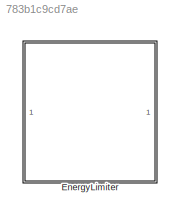
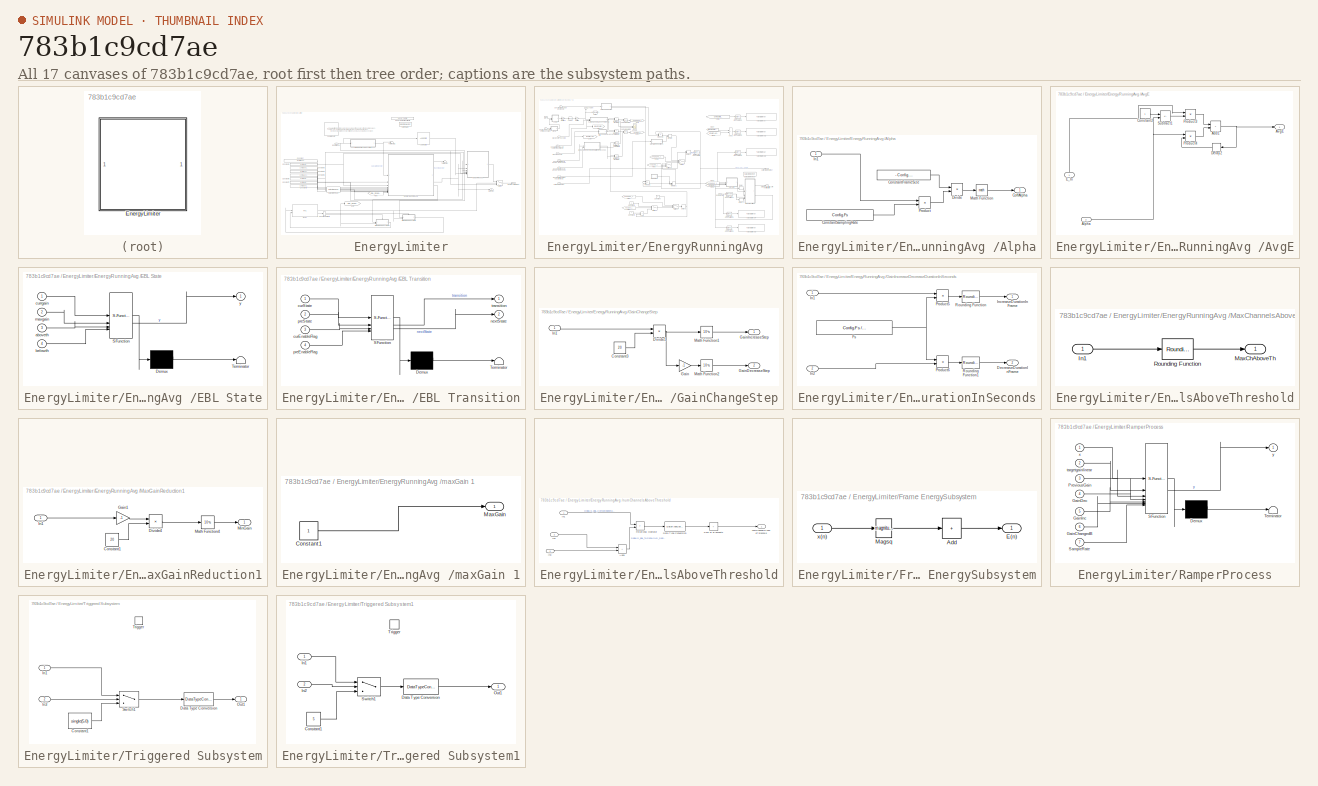
[diagram: thumbnail index - all 17 canvases of the model, root first then tree order]
MODEL slx_783b1c9cd7ae
KIND library
CONFIG AbsTol = auto
CONFIG EnableMultiTasking = off
CONFIG FixedStep = auto
CONFIG MaxStep = auto
CONFIG MinStep = auto
CONFIG RelTol = 1e-3
CONFIG SampleTimeConstraint = Unconstrained
CONFIG SolverName = VariableStepAuto
CONFIG StartTime = 0.0
CONFIG StopTime = 10.0
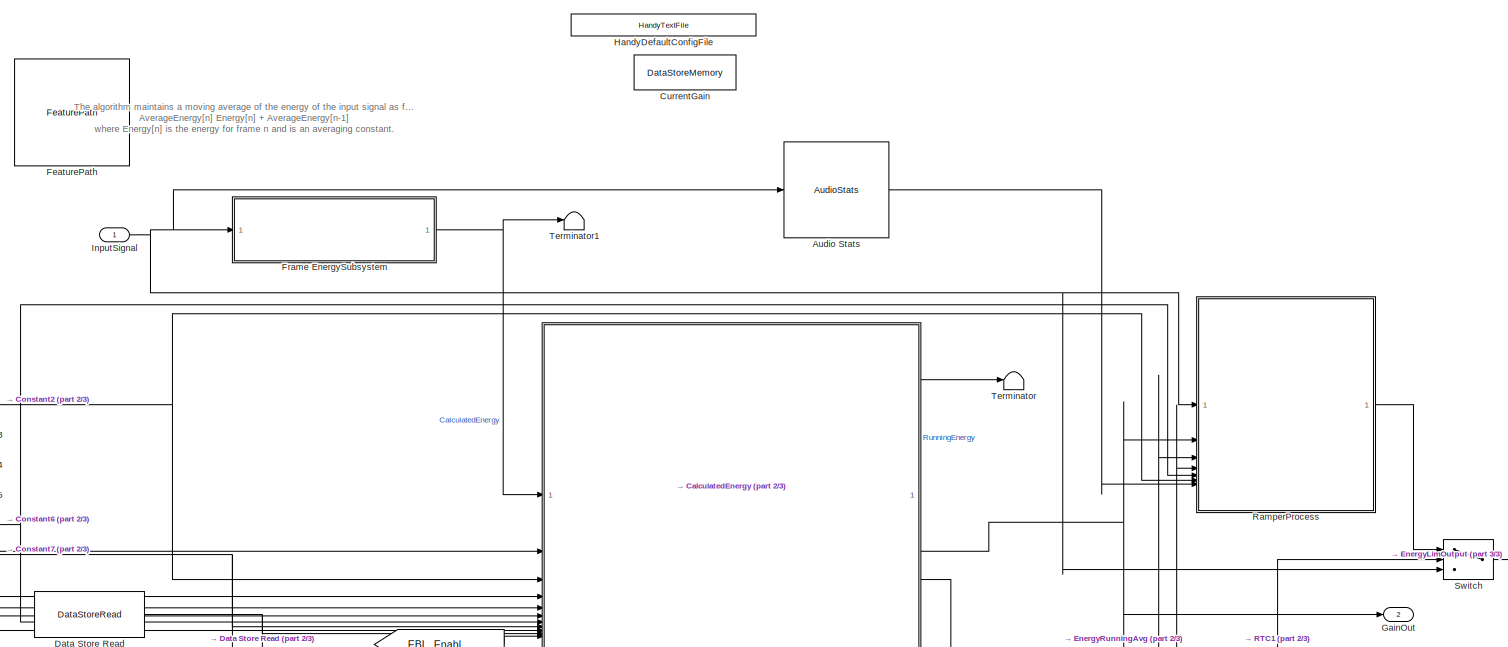
[diagram: EnergyLimiter - part 1/3, full width, middle band]
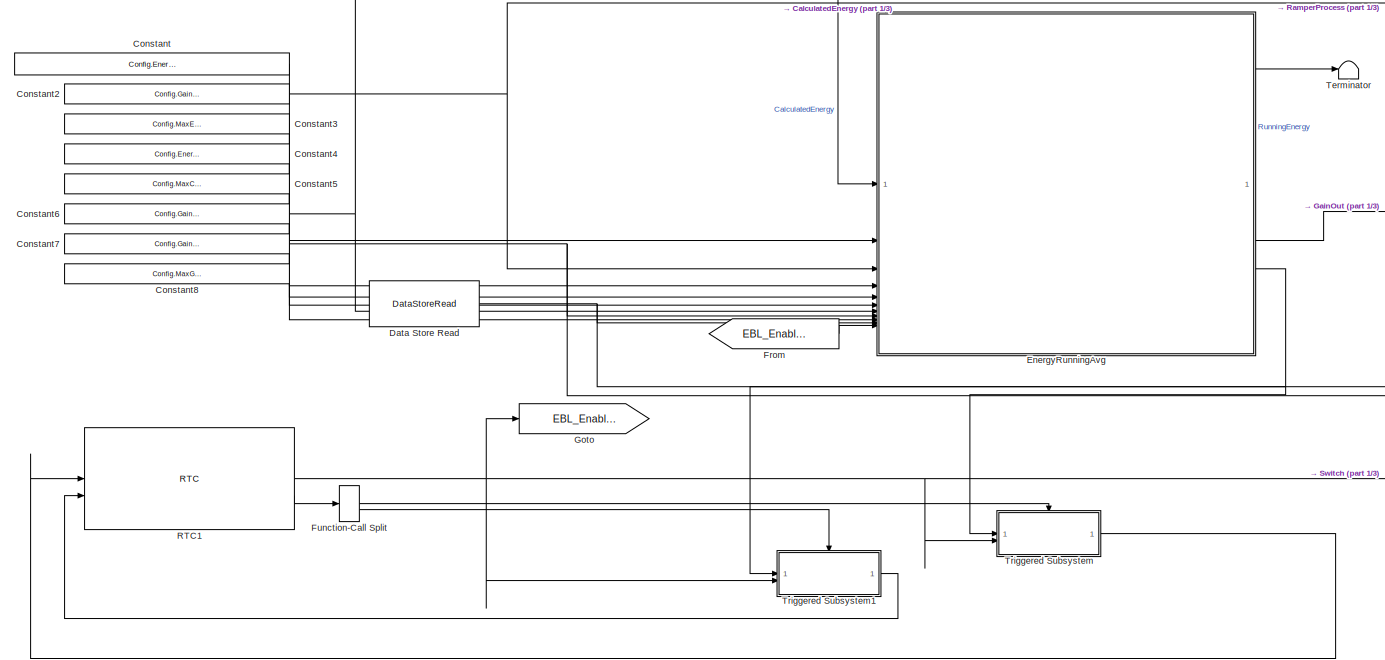
[diagram: EnergyLimiter - part 2/3, central region]
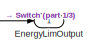
[diagram: EnergyLimiter - part 3/3, middle right region]
BLOCK [SubSystem] EnergyLimiter
BLOCK [Reference] EnergyLimiter/Audio Stats  REF=AudioStats/AudioStats
  SourceBlock = AudioStats/AudioStats
  SourceType = Talaria Audio Statistics
BLOCK [Constant] EnergyLimiter/Constant
  Value = Config.EnergyMeasurementTimeConstantInSeconds
BLOCK [Constant] EnergyLimiter/Constant2
  Value = Config.GainChangeStepInDb
BLOCK [Constant] EnergyLimiter/Constant3
  Value = Config.MaxEnergyLevelInDb
BLOCK [Constant] EnergyLimiter/Constant4
  Value = Config.EnergyAdjustmentFactorInDb
BLOCK [Constant] EnergyLimiter/Constant5
  Value = Config.MaxChannels
BLOCK [Constant] EnergyLimiter/Constant6
  Value = Config.GainIncreaseDurationInSeconds
BLOCK [Constant] EnergyLimiter/Constant7
  Value = Config.GainDecreaseDurationInSeconds
BLOCK [Constant] EnergyLimiter/Constant8
  Value = Config.MaxGainReductionInDb
BLOCK [DataStoreMemory] EnergyLimiter/CurrentGain
  DataStoreName = CurrentGainValue
  InitialValue = Config.CurrentGainVal
  OutDataTypeStr = single
  ShowAdditionalParam = off
BLOCK [DataStoreRead] EnergyLimiter/Data Store Read
  DataStoreName = CurrentGainValue
  IndexOptions = Index vector (dialog)
  Indices = 1
  OutputSizes = 1
BLOCK [Outport] EnergyLimiter/EnergyLimOutput
  VectorParamsAs1DForOutWhenUnconnected = off
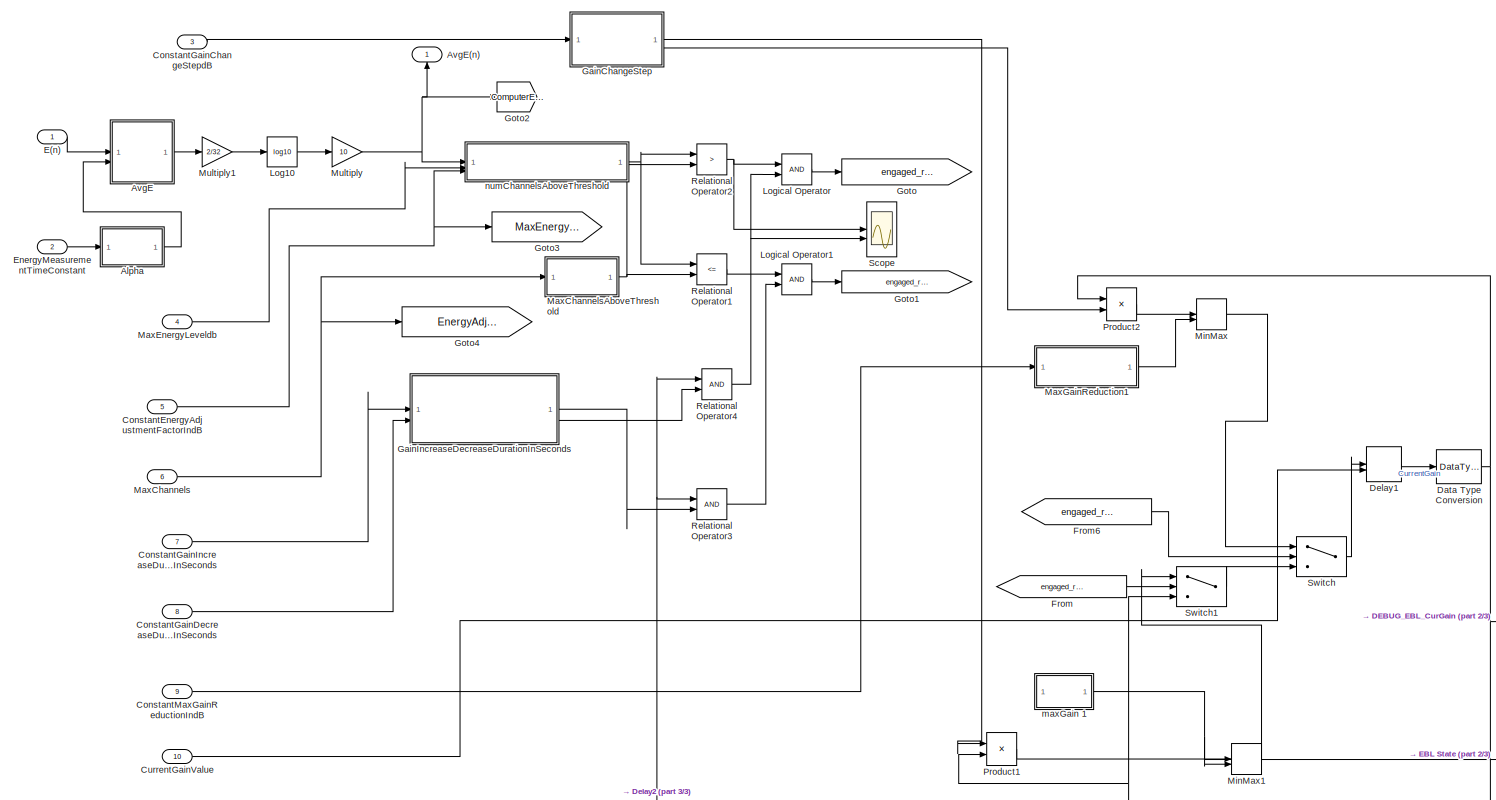
[diagram: EnergyLimiter/EnergyRunningAvg  - part 1/3, central region]
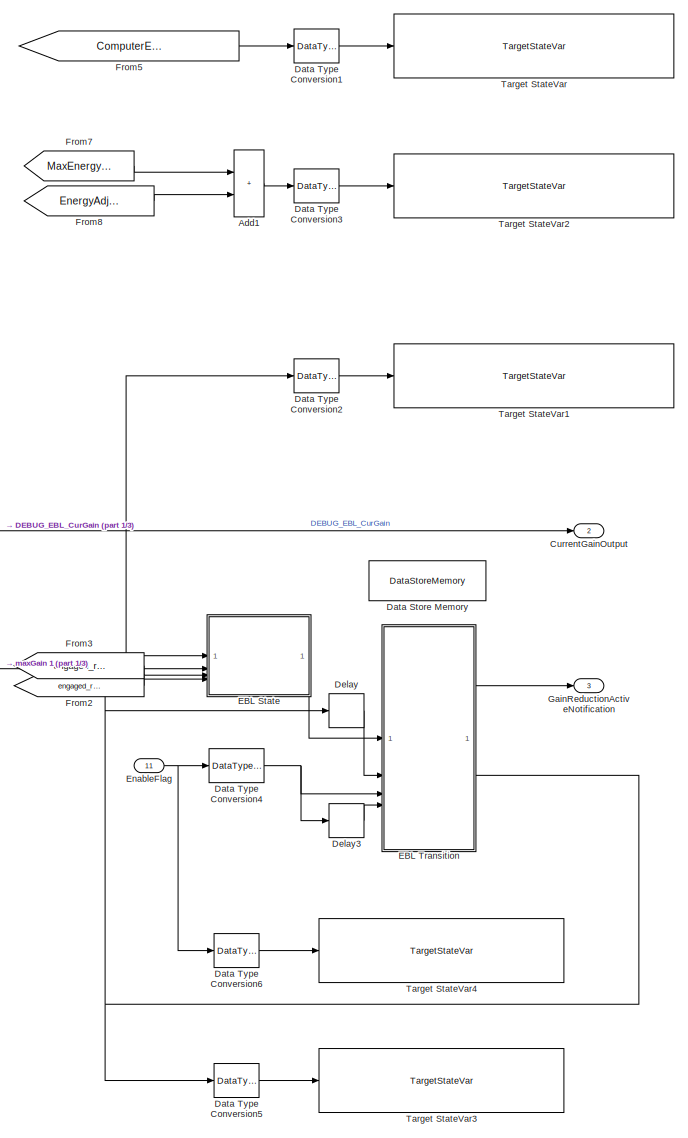
[diagram: EnergyLimiter/EnergyRunningAvg  - part 2/3, right side, full height]
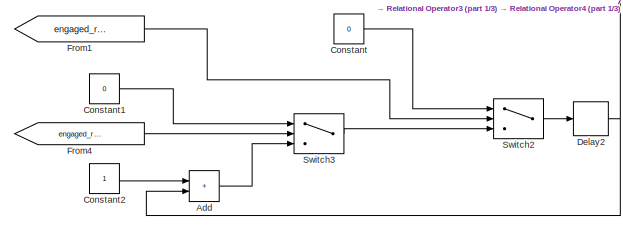
[diagram: EnergyLimiter/EnergyRunningAvg  - part 3/3, bottom center region]
BLOCK [SubSystem] EnergyLimiter/EnergyRunningAvg 
BLOCK [Sum] EnergyLimiter/EnergyRunningAvg /Add
  IconShape = rectangular
BLOCK [Sum] EnergyLimiter/EnergyRunningAvg /Add1
  IconShape = rectangular
BLOCK [SubSystem] EnergyLimiter/EnergyRunningAvg /Alpha
BLOCK [Outport] EnergyLimiter/EnergyRunningAvg /Alpha/CoffAlpha
  VectorParamsAs1DForOutWhenUnconnected = off
BLOCK [Constant] EnergyLimiter/EnergyRunningAvg /Alpha/ConstantFrameSize
  OutDataTypeStr = single
  Value = - Config.FrameSize
BLOCK [Constant] EnergyLimiter/EnergyRunningAvg /Alpha/ConstantSamplingRate
  OutDataTypeStr = single
  Value = Config.Fs
BLOCK [Product] EnergyLimiter/EnergyRunningAvg /Alpha/Divide
  Inputs = */
BLOCK [Inport] EnergyLimiter/EnergyRunningAvg /Alpha/In1
BLOCK [Math] EnergyLimiter/EnergyRunningAvg /Alpha/Math Function
  SignedPower = on
BLOCK [Product] EnergyLimiter/EnergyRunningAvg /Alpha/Product
BLOCK [SubSystem] EnergyLimiter/EnergyRunningAvg /AvgE
BLOCK [Outport] EnergyLimiter/EnergyRunningAvg /AvgE(n)
  NameLocation = right
  VectorParamsAs1DForOutWhenUnconnected = off
BLOCK [Sum] EnergyLimiter/EnergyRunningAvg /AvgE/Add1
  IconShape = rectangular
BLOCK [Inport] EnergyLimiter/EnergyRunningAvg /AvgE/Alpha
  Port = 2
BLOCK [Outport] EnergyLimiter/EnergyRunningAvg /AvgE/AvgE
  VectorParamsAs1DForOutWhenUnconnected = off
BLOCK [Constant] EnergyLimiter/EnergyRunningAvg /AvgE/Constant2
  OutDataTypeStr = single
BLOCK [Delay] EnergyLimiter/EnergyRunningAvg /AvgE/Delay2
  DelayLength = 1
  InitialCondition = 0
  InputPortMap = u0
BLOCK [Inport] EnergyLimiter/EnergyRunningAvg /AvgE/E_In
  NameLocation = right
BLOCK [Product] EnergyLimiter/EnergyRunningAvg /AvgE/Product3
BLOCK [Product] EnergyLimiter/EnergyRunningAvg /AvgE/Product4
BLOCK [Sum] EnergyLimiter/EnergyRunningAvg /AvgE/Subtract1
  IconShape = rectangular
  Inputs = +-
BLOCK [Constant] EnergyLimiter/EnergyRunningAvg /Constant
  OutDataTypeStr = single
  Value = 0
BLOCK [Constant] EnergyLimiter/EnergyRunningAvg /Constant1
  OutDataTypeStr = single
  Value = 0
BLOCK [Constant] EnergyLimiter/EnergyRunningAvg /Constant2
  OutDataTypeStr = single
BLOCK [Inport] EnergyLimiter/EnergyRunningAvg /ConstantEnergyAdjustmentFactorIndB
  Port = 5
BLOCK [Inport] EnergyLimiter/EnergyRunningAvg /ConstantGainChangeStepdB
  Port = 3
BLOCK [Inport] EnergyLimiter/EnergyRunningAvg /ConstantGainDecreaseDurationInSeconds
  Port = 8
BLOCK [Inport] EnergyLimiter/EnergyRunningAvg /ConstantGainIncreaseDurationInSeconds
  Port = 7
BLOCK [Inport] EnergyLimiter/EnergyRunningAvg /ConstantMaxGainReductionIndB
  Port = 9
BLOCK [Outport] EnergyLimiter/EnergyRunningAvg /CurrentGainOutput
  Port = 2
  VectorParamsAs1DForOutWhenUnconnected = off
BLOCK [Inport] EnergyLimiter/EnergyRunningAvg /CurrentGainValue
  Port = 10
BLOCK [DataStoreMemory] EnergyLimiter/EnergyRunningAvg /Data Store Memory
  DataStoreName = EBL_EnableCounter
  OutDataTypeStr = int16
  ReadBeforeWriteMsg = warning
  ShowAdditionalParam = off
  WriteAfterReadMsg = warning
  WriteAfterWriteMsg = warning
BLOCK [DataTypeConversion] EnergyLimiter/EnergyRunningAvg /Data Type Conversion
  OutDataTypeStr = single
  RndMeth = Floor
  SaturateOnIntegerOverflow = off
BLOCK [DataTypeConversion] EnergyLimiter/EnergyRunningAvg /Data Type Conversion1
  OutDataTypeStr = single
  RndMeth = Floor
  SaturateOnIntegerOverflow = off
BLOCK [DataTypeConversion] EnergyLimiter/EnergyRunningAvg /Data Type Conversion2
  OutDataTypeStr = single
  RndMeth = Floor
  SaturateOnIntegerOverflow = off
BLOCK [DataTypeConversion] EnergyLimiter/EnergyRunningAvg /Data Type Conversion3
  OutDataTypeStr = single
  RndMeth = Floor
  SaturateOnIntegerOverflow = off
BLOCK [DataTypeConversion] EnergyLimiter/EnergyRunningAvg /Data Type Conversion4
  OutDataTypeStr = single
  RndMeth = Floor
  SaturateOnIntegerOverflow = off
BLOCK [DataTypeConversion] EnergyLimiter/EnergyRunningAvg /Data Type Conversion5
  OutDataTypeStr = int16
  RndMeth = Floor
  SaturateOnIntegerOverflow = off
BLOCK [DataTypeConversion] EnergyLimiter/EnergyRunningAvg /Data Type Conversion6
  OutDataTypeStr = int16
  RndMeth = Floor
  SaturateOnIntegerOverflow = off
BLOCK [Delay] EnergyLimiter/EnergyRunningAvg /Delay
  DelayLength = 1
  InputPortMap = u0
BLOCK [Delay] EnergyLimiter/EnergyRunningAvg /Delay1
  DelayLength = 1
  InitialConditionSource = Input port
  InputPortMap = u0,p4
BLOCK [Delay] EnergyLimiter/EnergyRunningAvg /Delay2
  DelayLength = 1
  InitialCondition = 1
  InputPortMap = u0
BLOCK [Delay] EnergyLimiter/EnergyRunningAvg /Delay3
  DelayLength = 1
  InputPortMap = u0
BLOCK [Inport] EnergyLimiter/EnergyRunningAvg /E(n)
BLOCK [SubSystem] EnergyLimiter/EnergyRunningAvg /EBL State
  ErrorFcn = Stateflow.Translate.translate
  PermitHierarchicalResolution = ExplicitOnly
  SFBlockType = MATLAB Function
  TreatAsAtomicUnit = on
BLOCK [Demux] EnergyLimiter/EnergyRunningAvg /EBL State/ Demux 
  Outputs = 1
BLOCK [S-Function] EnergyLimiter/EnergyRunningAvg /EBL State/ SFunction 
  EnableBusSupport = off
  FunctionName = sf_sfun
  PortCounts = [4 2]
  SFcnIsStateOwnerBlock = off
  SFunctionDeploymentMode = off
  Tag = Stateflow S-Function 5
BLOCK [Terminator] EnergyLimiter/EnergyRunningAvg /EBL State/ Terminator 
BLOCK [Inport] EnergyLimiter/EnergyRunningAvg /EBL State/aboveth
  Port = 3
BLOCK [Inport] EnergyLimiter/EnergyRunningAvg /EBL State/belowth
  Port = 4
BLOCK [Inport] EnergyLimiter/EnergyRunningAvg /EBL State/currgain
BLOCK [Inport] EnergyLimiter/EnergyRunningAvg /EBL State/maxgain
  Port = 2
BLOCK [Outport] EnergyLimiter/EnergyRunningAvg /EBL State/y
BLOCK [SubSystem] EnergyLimiter/EnergyRunningAvg /EBL Transition
  ErrorFcn = Stateflow.Translate.translate
  PermitHierarchicalResolution = ExplicitOnly
  SFBlockType = MATLAB Function
  TreatAsAtomicUnit = on
BLOCK [Demux] EnergyLimiter/EnergyRunningAvg /EBL Transition/ Demux 
  Outputs = 1
BLOCK [S-Function] EnergyLimiter/EnergyRunningAvg /EBL Transition/ SFunction 
  EnableBusSupport = off
  FunctionName = sf_sfun
  PortCounts = [4 3]
  SFcnIsStateOwnerBlock = off
  SFunctionDeploymentMode = off
  Tag = Stateflow S-Function 2
BLOCK [Terminator] EnergyLimiter/EnergyRunningAvg /EBL Transition/ Terminator 
BLOCK [Inport] EnergyLimiter/EnergyRunningAvg /EBL Transition/curEnableFlag
  Port = 3
BLOCK [Inport] EnergyLimiter/EnergyRunningAvg /EBL Transition/curState
BLOCK [Outport] EnergyLimiter/EnergyRunningAvg /EBL Transition/nextState
  Port = 2
BLOCK [Inport] EnergyLimiter/EnergyRunningAvg /EBL Transition/preEnableFlag
  Port = 4
BLOCK [Inport] EnergyLimiter/EnergyRunningAvg /EBL Transition/preState
  Port = 2
BLOCK [Outport] EnergyLimiter/EnergyRunningAvg /EBL Transition/transition
BLOCK [Inport] EnergyLimiter/EnergyRunningAvg /EnableFlag
  Port = 11
BLOCK [Inport] EnergyLimiter/EnergyRunningAvg /EnergyMeasurementTimeConstant
  Port = 2
BLOCK [From] EnergyLimiter/EnergyRunningAvg /From
  GotoTag = engaged_recovery
BLOCK [From] EnergyLimiter/EnergyRunningAvg /From1
  GotoTag = engaged_reduction
BLOCK [From] EnergyLimiter/EnergyRunningAvg /From2
  GotoTag = engaged_recovery
BLOCK [From] EnergyLimiter/EnergyRunningAvg /From3
  GotoTag = engaged_reduction
BLOCK [From] EnergyLimiter/EnergyRunningAvg /From4
  GotoTag = engaged_recovery
BLOCK [From] EnergyLimiter/EnergyRunningAvg /From5
  GotoTag = ComputerEnergyPerChannel
BLOCK [From] EnergyLimiter/EnergyRunningAvg /From6
  GotoTag = engaged_reduction
BLOCK [From] EnergyLimiter/EnergyRunningAvg /From7
  GotoTag = MaxEnergydBSPL
BLOCK [From] EnergyLimiter/EnergyRunningAvg /From8
  GotoTag = EnergyAdjustmentdBSPL
BLOCK [SubSystem] EnergyLimiter/EnergyRunningAvg /GainChangeStep
BLOCK [Constant] EnergyLimiter/EnergyRunningAvg /GainChangeStep/Constant3
  OutDataTypeStr = single
  Value = 20
BLOCK [Product] EnergyLimiter/EnergyRunningAvg /GainChangeStep/Divide1
  Inputs = */
BLOCK [Gain] EnergyLimiter/EnergyRunningAvg /GainChangeStep/Gain
  Gain = -1
BLOCK [Outport] EnergyLimiter/EnergyRunningAvg /GainChangeStep/GainDecreaseStep
  Port = 2
  VectorParamsAs1DForOutWhenUnconnected = off
BLOCK [Outport] EnergyLimiter/EnergyRunningAvg /GainChangeStep/GainIncreaseStep
  VectorParamsAs1DForOutWhenUnconnected = off
BLOCK [Inport] EnergyLimiter/EnergyRunningAvg /GainChangeStep/In1
BLOCK [Math] EnergyLimiter/EnergyRunningAvg /GainChangeStep/Math Function1
  Operator = 10^u
  SignedPower = on
BLOCK [Math] EnergyLimiter/EnergyRunningAvg /GainChangeStep/Math Function2
  Operator = 10^u
  SignedPower = on
BLOCK [SubSystem] EnergyLimiter/EnergyRunningAvg /GainIncreaseDecreaseDurationInSeconds
BLOCK [Outport] EnergyLimiter/EnergyRunningAvg /GainIncreaseDecreaseDurationInSeconds/DecreaseDurationInFrame
  Port = 2
  VectorParamsAs1DForOutWhenUnconnected = off
BLOCK [Constant] EnergyLimiter/EnergyRunningAvg /GainIncreaseDecreaseDurationInSeconds/Fs
  OutDataTypeStr = single
  Value = Config.Fs / Config.FrameSize
BLOCK [Inport] EnergyLimiter/EnergyRunningAvg /GainIncreaseDecreaseDurationInSeconds/In1
BLOCK [Inport] EnergyLimiter/EnergyRunningAvg /GainIncreaseDecreaseDurationInSeconds/In2
  Port = 2
BLOCK [Outport] EnergyLimiter/EnergyRunningAvg /GainIncreaseDecreaseDurationInSeconds/IncreaseDurationInFrame
  VectorParamsAs1DForOutWhenUnconnected = off
BLOCK [Product] EnergyLimiter/EnergyRunningAvg /GainIncreaseDecreaseDurationInSeconds/Product5
BLOCK [Product] EnergyLimiter/EnergyRunningAvg /GainIncreaseDecreaseDurationInSeconds/Product6
BLOCK [Rounding] EnergyLimiter/EnergyRunningAvg /GainIncreaseDecreaseDurationInSeconds/Rounding Function
  Operator = round
BLOCK [Rounding] EnergyLimiter/EnergyRunningAvg /GainIncreaseDecreaseDurationInSeconds/Rounding Function1
  Operator = round
BLOCK [Outport] EnergyLimiter/EnergyRunningAvg /GainReductionActiveNotification
  Port = 3
  VectorParamsAs1DForOutWhenUnconnected = off
BLOCK [Goto] EnergyLimiter/EnergyRunningAvg /Goto
  GotoTag = engaged_reduction
BLOCK [Goto] EnergyLimiter/EnergyRunningAvg /Goto1
  GotoTag = engaged_recovery
BLOCK [Goto] EnergyLimiter/EnergyRunningAvg /Goto2
  GotoTag = ComputerEnergyPerChannel
BLOCK [Goto] EnergyLimiter/EnergyRunningAvg /Goto3
  GotoTag = MaxEnergydBSPL
BLOCK [Goto] EnergyLimiter/EnergyRunningAvg /Goto4
  GotoTag = EnergyAdjustmentdBSPL
BLOCK [Math] EnergyLimiter/EnergyRunningAvg /Log10
  Operator = log10
BLOCK [Logic] EnergyLimiter/EnergyRunningAvg /Logical Operator
  AllPortsSameDT = off
  OutDataTypeStr = boolean
BLOCK [Logic] EnergyLimiter/EnergyRunningAvg /Logical Operator1
  AllPortsSameDT = off
  OutDataTypeStr = boolean
BLOCK [Inport] EnergyLimiter/EnergyRunningAvg /MaxChannels
  Port = 6
BLOCK [SubSystem] EnergyLimiter/EnergyRunningAvg /MaxChannelsAboveThreshold
BLOCK [Inport] EnergyLimiter/EnergyRunningAvg /MaxChannelsAboveThreshold/In1
BLOCK [Outport] EnergyLimiter/EnergyRunningAvg /MaxChannelsAboveThreshold/MaxChAboveTh
  VectorParamsAs1DForOutWhenUnconnected = off
BLOCK [Rounding] EnergyLimiter/EnergyRunningAvg /MaxChannelsAboveThreshold/Rounding Function
  Operator = round
BLOCK [Inport] EnergyLimiter/EnergyRunningAvg /MaxEnergyLeveldb
  Port = 4
BLOCK [SubSystem] EnergyLimiter/EnergyRunningAvg /MaxGainReduction1
BLOCK [Constant] EnergyLimiter/EnergyRunningAvg /MaxGainReduction1/Constant1
  OutDataTypeStr = single
  Value = 20
BLOCK [Product] EnergyLimiter/EnergyRunningAvg /MaxGainReduction1/Divide4
  Inputs = */
BLOCK [Gain] EnergyLimiter/EnergyRunningAvg /MaxGainReduction1/Gain1
  Gain = -1
BLOCK [Inport] EnergyLimiter/EnergyRunningAvg /MaxGainReduction1/In1
BLOCK [Math] EnergyLimiter/EnergyRunningAvg /MaxGainReduction1/Math Function4
  Operator = 10^u
  SignedPower = on
BLOCK [Outport] EnergyLimiter/EnergyRunningAvg /MaxGainReduction1/MinGain
  VectorParamsAs1DForOutWhenUnconnected = off
BLOCK [MinMax] EnergyLimiter/EnergyRunningAvg /MinMax
  Function = max
  Inputs = 2
  OutDataTypeStr = single
BLOCK [MinMax] EnergyLimiter/EnergyRunningAvg /MinMax1
  Inputs = 2
  OutDataTypeStr = single
BLOCK [Gain] EnergyLimiter/EnergyRunningAvg /Multiply
  Gain = 10
BLOCK [Gain] EnergyLimiter/EnergyRunningAvg /Multiply1
  Gain = 2/32
BLOCK [Product] EnergyLimiter/EnergyRunningAvg /Product1
  OutDataTypeStr = single
BLOCK [Product] EnergyLimiter/EnergyRunningAvg /Product2
BLOCK [RelationalOperator] EnergyLimiter/EnergyRunningAvg /Relational Operator1
  InputSameDT = off
  Operator = <=
  OutDataTypeStr = boolean
  RndMeth = Simplest
BLOCK [RelationalOperator] EnergyLimiter/EnergyRunningAvg /Relational Operator2
  InputSameDT = off
  Operator = >
  OutDataTypeStr = boolean
  RndMeth = Simplest
BLOCK [RelationalOperator] EnergyLimiter/EnergyRunningAvg /Relational Operator3
  InputSameDT = off
  OutDataTypeStr = boolean
  RndMeth = Simplest
BLOCK [RelationalOperator] EnergyLimiter/EnergyRunningAvg /Relational Operator4
  InputSameDT = off
  OutDataTypeStr = boolean
  RndMeth = Simplest
BLOCK [Scope] EnergyLimiter/EnergyRunningAvg /Scope
  Commented = on
  Floating = off
  NumInputPorts = 2
  ScopeSpecificationString = Simulink.scopes.TimeScopeBlockCfg('CurrentConfiguration', extmgr.ConfigurationSet(extmgr.Configuration('Core','General UI',true),extmgr.Configuration('Core','Source UI',true),extmgr.Configuration('Sources','WiredSimulink',true,'DataLoggingVariableName','ScopeData1'),extmgr.Configuration('Visuals','Time Domain',true,'SerializedDisplays',{struct('MinYLimReal','-0.125','MaxYLimReal','1.125','YLabelRe...<+2078ch>
BLOCK [Switch] EnergyLimiter/EnergyRunningAvg /Switch
  Criteria = u2 > Threshold
  InputSameDT = off
  SaturateOnIntegerOverflow = off
BLOCK [Switch] EnergyLimiter/EnergyRunningAvg /Switch1
  Criteria = u2 > Threshold
  InputSameDT = off
  SaturateOnIntegerOverflow = off
BLOCK [Switch] EnergyLimiter/EnergyRunningAvg /Switch2
  Criteria = u2 > Threshold
  InputSameDT = off
  SaturateOnIntegerOverflow = off
BLOCK [Switch] EnergyLimiter/EnergyRunningAvg /Switch3
  Criteria = u2 > Threshold
  InputSameDT = off
  SaturateOnIntegerOverflow = off
BLOCK [Reference] EnergyLimiter/EnergyRunningAvg /Target StateVar  REF=StateVar/TargetStateVar
  SourceBlock = StateVar/TargetStateVar
  SourceType = Talaria Target State Variable
BLOCK [Reference] EnergyLimiter/EnergyRunningAvg /Target StateVar1  REF=StateVar/TargetStateVar
  SourceBlock = StateVar/TargetStateVar
  SourceType = Talaria Target State Variable
BLOCK [Reference] EnergyLimiter/EnergyRunningAvg /Target StateVar2  REF=StateVar/TargetStateVar
  SourceBlock = StateVar/TargetStateVar
  SourceType = Talaria Target State Variable
BLOCK [Reference] EnergyLimiter/EnergyRunningAvg /Target StateVar3  REF=StateVar/TargetStateVar
  SourceBlock = StateVar/TargetStateVar
  SourceType = Talaria Target State Variable
BLOCK [Reference] EnergyLimiter/EnergyRunningAvg /Target StateVar4  REF=StateVar/TargetStateVar
  SourceBlock = StateVar/TargetStateVar
  SourceType = Talaria Target State Variable
BLOCK [SubSystem] EnergyLimiter/EnergyRunningAvg /maxGain 1
BLOCK [Constant] EnergyLimiter/EnergyRunningAvg /maxGain 1/Constant1
  OutDataTypeStr = single
BLOCK [Outport] EnergyLimiter/EnergyRunningAvg /maxGain 1/MaxGain
  VectorParamsAs1DForOutWhenUnconnected = off
BLOCK [SubSystem] EnergyLimiter/EnergyRunningAvg /numChannelsAboveThreshold
BLOCK [Sum] EnergyLimiter/EnergyRunningAvg /numChannelsAboveThreshold/Add1
  IconShape = rectangular
BLOCK [DataTypeConversion] EnergyLimiter/EnergyRunningAvg /numChannelsAboveThreshold/Data Type Conversion
  RndMeth = Floor
  SaturateOnIntegerOverflow = off
BLOCK [Inport] EnergyLimiter/EnergyRunningAvg /numChannelsAboveThreshold/In1
BLOCK [Inport] EnergyLimiter/EnergyRunningAvg /numChannelsAboveThreshold/In2
  Port = 2
BLOCK [Inport] EnergyLimiter/EnergyRunningAvg /numChannelsAboveThreshold/In3
  Port = 3
BLOCK [RelationalOperator] EnergyLimiter/EnergyRunningAvg /numChannelsAboveThreshold/Relational Operator
  InputSameDT = off
  Operator = >
  OutDataTypeStr = boolean
  RndMeth = Simplest
BLOCK [Sum] EnergyLimiter/EnergyRunningAvg /numChannelsAboveThreshold/Sum of Elements
  IconShape = rectangular
  Inputs = +
BLOCK [Outport] EnergyLimiter/EnergyRunningAvg /numChannelsAboveThreshold/numChannelsAboveThreshold
  VectorParamsAs1DForOutWhenUnconnected = off
BLOCK [Reference] EnergyLimiter/FeaturePath  REF=FeaturePath/FeaturePath
  SourceBlock = FeaturePath/FeaturePath
  SourceType = Talaria Feature Path
BLOCK [SubSystem] EnergyLimiter/Frame EnergySubsystem
BLOCK [Sum] EnergyLimiter/Frame EnergySubsystem/Add
  CollapseMode = Specified dimension
  IconShape = rectangular
  Inputs = +
BLOCK [Outport] EnergyLimiter/Frame EnergySubsystem/E(n)
  VectorParamsAs1DForOutWhenUnconnected = off
BLOCK [Math] EnergyLimiter/Frame EnergySubsystem/Magsq
  Operator = magnitude^2
  SignedPower = on
BLOCK [Inport] EnergyLimiter/Frame EnergySubsystem/x(n)
BLOCK [From] EnergyLimiter/From
  GotoTag = EBL_EnableFlag
BLOCK [FunctionCallSplit] EnergyLimiter/Function-Call Split
  IconShape = distinctive
  NumOutputPorts = 2
  OutputPortLayout = default
BLOCK [Outport] EnergyLimiter/GainOut
  Port = 2
BLOCK [Goto] EnergyLimiter/Goto
  GotoTag = EBL_EnableFlag
BLOCK [Reference] EnergyLimiter/HandyDefaultConfigFile  REF=HandyTextFile/HandyTextFile
  SourceBlock = HandyTextFile/HandyTextFile
  SourceType = Talaria Handy Text File
BLOCK [Inport] EnergyLimiter/InputSignal
BLOCK [Reference] EnergyLimiter/RTC1  REF=RTC/RTC
  SourceBlock = RTC/RTC
  SourceType = Talaria RTC Receive
BLOCK [SubSystem] EnergyLimiter/RamperProcess
  ErrorFcn = Stateflow.Translate.translate
  PermitHierarchicalResolution = ExplicitOnly
  SFBlockType = MATLAB Function
  TreatAsAtomicUnit = on
BLOCK [Demux] EnergyLimiter/RamperProcess/ Demux 
  Outputs = 1
BLOCK [S-Function] EnergyLimiter/RamperProcess/ SFunction 
  EnableBusSupport = off
  FunctionName = sf_sfun
  PortCounts = [7 2]
  SFcnIsStateOwnerBlock = off
  SFunctionDeploymentMode = off
  Tag = Stateflow S-Function 7
BLOCK [Terminator] EnergyLimiter/RamperProcess/ Terminator 
BLOCK [Inport] EnergyLimiter/RamperProcess/GainChangedB
  Port = 6
BLOCK [Inport] EnergyLimiter/RamperProcess/GainDec
  Port = 4
BLOCK [Inport] EnergyLimiter/RamperProcess/GainInc
  Port = 5
BLOCK [Inport] EnergyLimiter/RamperProcess/PreviousGain
  Port = 3
BLOCK [Inport] EnergyLimiter/RamperProcess/SampleRate
  Port = 7
BLOCK [Inport] EnergyLimiter/RamperProcess/targetgainlinear
  Port = 2
BLOCK [Inport] EnergyLimiter/RamperProcess/x
BLOCK [Outport] EnergyLimiter/RamperProcess/y
BLOCK [Switch] EnergyLimiter/Switch
  Criteria = u2 > Threshold
  InputSameDT = off
  SaturateOnIntegerOverflow = off
BLOCK [Terminator] EnergyLimiter/Terminator
BLOCK [Terminator] EnergyLimiter/Terminator1
BLOCK [SubSystem] EnergyLimiter/Triggered Subsystem
  TreatAsAtomicUnit = on
BLOCK [Constant] EnergyLimiter/Triggered Subsystem/Constant1
  OutDataTypeStr = single
  Value = single(5.0)
BLOCK [DataTypeConversion] EnergyLimiter/Triggered Subsystem/Data Type Conversion
  OutDataTypeStr = boolean
  RndMeth = Floor
  SaturateOnIntegerOverflow = off
BLOCK [Inport] EnergyLimiter/Triggered Subsystem/In1
BLOCK [Inport] EnergyLimiter/Triggered Subsystem/In3
  Port = 2
BLOCK [Outport] EnergyLimiter/Triggered Subsystem/Out1
BLOCK [Switch] EnergyLimiter/Triggered Subsystem/Switch1
  Criteria = u2 > Threshold
  InputSameDT = off
  SaturateOnIntegerOverflow = off
BLOCK [TriggerPort] EnergyLimiter/Triggered Subsystem/Trigger
  StatesWhenEnabling = held
  TriggerType = function-call
  VariantControl = Variant
BLOCK [SubSystem] EnergyLimiter/Triggered Subsystem1
  TreatAsAtomicUnit = on
BLOCK [Constant] EnergyLimiter/Triggered Subsystem1/Constant1
  OutDataTypeStr = single
  Value = 5
BLOCK [DataTypeConversion] EnergyLimiter/Triggered Subsystem1/Data Type Conversion
  OutDataTypeStr = uint32
  RndMeth = Floor
  SaturateOnIntegerOverflow = off
BLOCK [Inport] EnergyLimiter/Triggered Subsystem1/In1
BLOCK [Inport] EnergyLimiter/Triggered Subsystem1/In2
  Port = 2
BLOCK [Outport] EnergyLimiter/Triggered Subsystem1/Out1
  VectorParamsAs1DForOutWhenUnconnected = off
BLOCK [Switch] EnergyLimiter/Triggered Subsystem1/Switch1
  Criteria = u2 > Threshold
  InputSameDT = off
  SaturateOnIntegerOverflow = off
BLOCK [TriggerPort] EnergyLimiter/Triggered Subsystem1/Trigger
  StatesWhenEnabling = held
  TriggerType = function-call
  VariantControl = Variant
ANNOTATION EnergyLimiter: The algorithm maintains a moving average of the energy of the input signal as follows: AverageEnergy[n] Energy[n] + AverageEnergy[n-1] where Energy[n] is the energy for frame n and is an averaging constant.
LINE EnergyLimiter/Audio Stats:1 -> EnergyLimiter/RamperProcess:7
NET EnergyLimiter/Constant2:1 -> EnergyLimiter/EnergyRunningAvg :3, EnergyLimiter/RamperProcess:6
LINE EnergyLimiter/Constant3:1 -> EnergyLimiter/EnergyRunningAvg :4
LINE EnergyLimiter/Constant4:1 -> EnergyLimiter/EnergyRunningAvg :5
LINE EnergyLimiter/Constant5:1 -> EnergyLimiter/EnergyRunningAvg :6
NET EnergyLimiter/Constant6:1 -> EnergyLimiter/EnergyRunningAvg :7, EnergyLimiter/RamperProcess:5
NET EnergyLimiter/Constant7:1 -> EnergyLimiter/EnergyRunningAvg :8, EnergyLimiter/RamperProcess:4
LINE EnergyLimiter/Constant8:1 -> EnergyLimiter/EnergyRunningAvg :9
LINE EnergyLimiter/Constant:1 -> EnergyLimiter/EnergyRunningAvg :2
NET EnergyLimiter/Data Store Read:1 -> EnergyLimiter/EnergyRunningAvg :10, EnergyLimiter/RamperProcess:3
LINE EnergyLimiter/EnergyRunningAvg /Add1:1 -> EnergyLimiter/EnergyRunningAvg /Data Type Conversion3:1
LINE EnergyLimiter/EnergyRunningAvg /Add:1 -> EnergyLimiter/EnergyRunningAvg /Switch3:3
LINE EnergyLimiter/EnergyRunningAvg /Alpha/ConstantFrameSize:1 -> EnergyLimiter/EnergyRunningAvg /Alpha/Divide:1
LINE EnergyLimiter/EnergyRunningAvg /Alpha/ConstantSamplingRate:1 -> EnergyLimiter/EnergyRunningAvg /Alpha/Product:2
LINE EnergyLimiter/EnergyRunningAvg /Alpha/Divide:1 -> EnergyLimiter/EnergyRunningAvg /Alpha/Math Function:1
LINE EnergyLimiter/EnergyRunningAvg /Alpha/In1:1 -> EnergyLimiter/EnergyRunningAvg /Alpha/Product:1
LINE EnergyLimiter/EnergyRunningAvg /Alpha/Math Function:1 -> EnergyLimiter/EnergyRunningAvg /Alpha/CoffAlpha:1
LINE EnergyLimiter/EnergyRunningAvg /Alpha/Product:1 -> EnergyLimiter/EnergyRunningAvg /Alpha/Divide:2
LINE EnergyLimiter/EnergyRunningAvg /Alpha:1 -> EnergyLimiter/EnergyRunningAvg /AvgE:2
NET EnergyLimiter/EnergyRunningAvg /AvgE/Add1:1 -> EnergyLimiter/EnergyRunningAvg /AvgE/AvgE:1, EnergyLimiter/EnergyRunningAvg /AvgE/Delay2:1
NET EnergyLimiter/EnergyRunningAvg /AvgE/Alpha:1 -> EnergyLimiter/EnergyRunningAvg /AvgE/Product4:1, EnergyLimiter/EnergyRunningAvg /AvgE/Subtract1:2
LINE EnergyLimiter/EnergyRunningAvg /AvgE/Constant2:1 -> EnergyLimiter/EnergyRunningAvg /AvgE/Subtract1:1
LINE EnergyLimiter/EnergyRunningAvg /AvgE/Delay2:1 -> EnergyLimiter/EnergyRunningAvg /AvgE/Product4:2
LINE EnergyLimiter/EnergyRunningAvg /AvgE/E_In:1 -> EnergyLimiter/EnergyRunningAvg /AvgE/Product3:1
LINE EnergyLimiter/EnergyRunningAvg /AvgE/Product3:1 -> EnergyLimiter/EnergyRunningAvg /AvgE/Add1:1
LINE EnergyLimiter/EnergyRunningAvg /AvgE/Product4:1 -> EnergyLimiter/EnergyRunningAvg /AvgE/Add1:2
LINE EnergyLimiter/EnergyRunningAvg /AvgE/Subtract1:1 -> EnergyLimiter/EnergyRunningAvg /AvgE/Product3:2
LINE EnergyLimiter/EnergyRunningAvg /AvgE:1 -> EnergyLimiter/EnergyRunningAvg /Multiply1:1
LINE EnergyLimiter/EnergyRunningAvg /Constant1:1 -> EnergyLimiter/EnergyRunningAvg /Switch3:1
LINE EnergyLimiter/EnergyRunningAvg /Constant2:1 -> EnergyLimiter/EnergyRunningAvg /Add:1
LINE EnergyLimiter/EnergyRunningAvg /Constant:1 -> EnergyLimiter/EnergyRunningAvg /Switch2:1
NET EnergyLimiter/EnergyRunningAvg /ConstantEnergyAdjustmentFactorIndB:1 -> EnergyLimiter/EnergyRunningAvg /Goto3:1, EnergyLimiter/EnergyRunningAvg /numChannelsAboveThreshold:3
LINE EnergyLimiter/EnergyRunningAvg /ConstantGainChangeStepdB:1 -> EnergyLimiter/EnergyRunningAvg /GainChangeStep:1
LINE EnergyLimiter/EnergyRunningAvg /ConstantGainDecreaseDurationInSeconds:1 -> EnergyLimiter/EnergyRunningAvg /GainIncreaseDecreaseDurationInSeconds:2
LINE EnergyLimiter/EnergyRunningAvg /ConstantGainIncreaseDurationInSeconds:1 -> EnergyLimiter/EnergyRunningAvg /GainIncreaseDecreaseDurationInSeconds:1
LINE EnergyLimiter/EnergyRunningAvg /ConstantMaxGainReductionIndB:1 -> EnergyLimiter/EnergyRunningAvg /MaxGainReduction1:1
LINE EnergyLimiter/EnergyRunningAvg /CurrentGainValue:1 -> EnergyLimiter/EnergyRunningAvg /Delay1:2
LINE EnergyLimiter/EnergyRunningAvg /Data Type Conversion1:1 -> EnergyLimiter/EnergyRunningAvg /Target StateVar:1
LINE EnergyLimiter/EnergyRunningAvg /Data Type Conversion2:1 -> EnergyLimiter/EnergyRunningAvg /Target StateVar1:1
LINE EnergyLimiter/EnergyRunningAvg /Data Type Conversion3:1 -> EnergyLimiter/EnergyRunningAvg /Target StateVar2:1
NET EnergyLimiter/EnergyRunningAvg /Data Type Conversion4:1 -> EnergyLimiter/EnergyRunningAvg /Delay3:1, EnergyLimiter/EnergyRunningAvg /EBL Transition:3
LINE EnergyLimiter/EnergyRunningAvg /Data Type Conversion5:1 -> EnergyLimiter/EnergyRunningAvg /Target StateVar3:1
LINE EnergyLimiter/EnergyRunningAvg /Data Type Conversion6:1 -> EnergyLimiter/EnergyRunningAvg /Target StateVar4:1
NET EnergyLimiter/EnergyRunningAvg /Data Type Conversion:1 -> EnergyLimiter/EnergyRunningAvg /CurrentGainOutput:1, EnergyLimiter/EnergyRunningAvg /Data Type Conversion2:1, EnergyLimiter/EnergyRunningAvg /EBL State:1, EnergyLimiter/EnergyRunningAvg /Product1:2, EnergyLimiter/EnergyRunningAvg /Product2:1, EnergyLimiter/EnergyRunningAvg /Switch1:3
LINE EnergyLimiter/EnergyRunningAvg /Delay1:1 -> EnergyLimiter/EnergyRunningAvg /Data Type Conversion:1
NET EnergyLimiter/EnergyRunningAvg /Delay2:1 -> EnergyLimiter/EnergyRunningAvg /Add:2, EnergyLimiter/EnergyRunningAvg /Relational Operator3:1, EnergyLimiter/EnergyRunningAvg /Relational Operator4:1
LINE EnergyLimiter/EnergyRunningAvg /Delay3:1 -> EnergyLimiter/EnergyRunningAvg /EBL Transition:4
LINE EnergyLimiter/EnergyRunningAvg /Delay:1 -> EnergyLimiter/EnergyRunningAvg /EBL Transition:2
LINE EnergyLimiter/EnergyRunningAvg /E(n):1 -> EnergyLimiter/EnergyRunningAvg /AvgE:1
LINE EnergyLimiter/EnergyRunningAvg /EBL State:1 -> EnergyLimiter/EnergyRunningAvg /EBL Transition:1
LINE EnergyLimiter/EnergyRunningAvg /EBL Transition:1 -> EnergyLimiter/EnergyRunningAvg /GainReductionActiveNotification:1
NET EnergyLimiter/EnergyRunningAvg /EBL Transition:2 -> EnergyLimiter/EnergyRunningAvg /Data Type Conversion5:1, EnergyLimiter/EnergyRunningAvg /Delay:1
NET EnergyLimiter/EnergyRunningAvg /EnableFlag:1 -> EnergyLimiter/EnergyRunningAvg /Data Type Conversion4:1, EnergyLimiter/EnergyRunningAvg /Data Type Conversion6:1
LINE EnergyLimiter/EnergyRunningAvg /EnergyMeasurementTimeConstant:1 -> EnergyLimiter/EnergyRunningAvg /Alpha:1
LINE EnergyLimiter/EnergyRunningAvg /From1:1 -> EnergyLimiter/EnergyRunningAvg /Switch2:2
LINE EnergyLimiter/EnergyRunningAvg /From2:1 -> EnergyLimiter/EnergyRunningAvg /EBL State:4
LINE EnergyLimiter/EnergyRunningAvg /From3:1 -> EnergyLimiter/EnergyRunningAvg /EBL State:3
LINE EnergyLimiter/EnergyRunningAvg /From4:1 -> EnergyLimiter/EnergyRunningAvg /Switch3:2
LINE EnergyLimiter/EnergyRunningAvg /From5:1 -> EnergyLimiter/EnergyRunningAvg /Data Type Conversion1:1
LINE EnergyLimiter/EnergyRunningAvg /From6:1 -> EnergyLimiter/EnergyRunningAvg /Switch:2
LINE EnergyLimiter/EnergyRunningAvg /From7:1 -> EnergyLimiter/EnergyRunningAvg /Add1:1
LINE EnergyLimiter/EnergyRunningAvg /From8:1 -> EnergyLimiter/EnergyRunningAvg /Add1:2
LINE EnergyLimiter/EnergyRunningAvg /From:1 -> EnergyLimiter/EnergyRunningAvg /Switch1:2
LINE EnergyLimiter/EnergyRunningAvg /GainChangeStep/Constant3:1 -> EnergyLimiter/EnergyRunningAvg /GainChangeStep/Divide1:2
NET EnergyLimiter/EnergyRunningAvg /GainChangeStep/Divide1:1 -> EnergyLimiter/EnergyRunningAvg /GainChangeStep/Gain:1, EnergyLimiter/EnergyRunningAvg /GainChangeStep/Math Function1:1
LINE EnergyLimiter/EnergyRunningAvg /GainChangeStep/Gain:1 -> EnergyLimiter/EnergyRunningAvg /GainChangeStep/Math Function2:1
LINE EnergyLimiter/EnergyRunningAvg /GainChangeStep/In1:1 -> EnergyLimiter/EnergyRunningAvg /GainChangeStep/Divide1:1
LINE EnergyLimiter/EnergyRunningAvg /GainChangeStep/Math Function1:1 -> EnergyLimiter/EnergyRunningAvg /GainChangeStep/GainIncreaseStep:1
LINE EnergyLimiter/EnergyRunningAvg /GainChangeStep/Math Function2:1 -> EnergyLimiter/EnergyRunningAvg /GainChangeStep/GainDecreaseStep:1
LINE EnergyLimiter/EnergyRunningAvg /GainChangeStep:1 -> EnergyLimiter/EnergyRunningAvg /Product1:1
LINE EnergyLimiter/EnergyRunningAvg /GainChangeStep:2 -> EnergyLimiter/EnergyRunningAvg /Product2:2
NET EnergyLimiter/EnergyRunningAvg /GainIncreaseDecreaseDurationInSeconds/Fs:1 -> EnergyLimiter/EnergyRunningAvg /GainIncreaseDecreaseDurationInSeconds/Product5:2, EnergyLimiter/EnergyRunningAvg /GainIncreaseDecreaseDurationInSeconds/Product6:1
LINE EnergyLimiter/EnergyRunningAvg /GainIncreaseDecreaseDurationInSeconds/In1:1 -> EnergyLimiter/EnergyRunningAvg /GainIncreaseDecreaseDurationInSeconds/Product5:1
LINE EnergyLimiter/EnergyRunningAvg /GainIncreaseDecreaseDurationInSeconds/In2:1 -> EnergyLimiter/EnergyRunningAvg /GainIncreaseDecreaseDurationInSeconds/Product6:2
LINE EnergyLimiter/EnergyRunningAvg /GainIncreaseDecreaseDurationInSeconds/Product5:1 -> EnergyLimiter/EnergyRunningAvg /GainIncreaseDecreaseDurationInSeconds/Rounding Function:1
LINE EnergyLimiter/EnergyRunningAvg /GainIncreaseDecreaseDurationInSeconds/Product6:1 -> EnergyLimiter/EnergyRunningAvg /GainIncreaseDecreaseDurationInSeconds/Rounding Function1:1
LINE EnergyLimiter/EnergyRunningAvg /GainIncreaseDecreaseDurationInSeconds/Rounding Function1:1 -> EnergyLimiter/EnergyRunningAvg /GainIncreaseDecreaseDurationInSeconds/DecreaseDurationInFrame:1
LINE EnergyLimiter/EnergyRunningAvg /GainIncreaseDecreaseDurationInSeconds/Rounding Function:1 -> EnergyLimiter/EnergyRunningAvg /GainIncreaseDecreaseDurationInSeconds/IncreaseDurationInFrame:1
LINE EnergyLimiter/EnergyRunningAvg /GainIncreaseDecreaseDurationInSeconds:1 -> EnergyLimiter/EnergyRunningAvg /Relational Operator3:2
LINE EnergyLimiter/EnergyRunningAvg /GainIncreaseDecreaseDurationInSeconds:2 -> EnergyLimiter/EnergyRunningAvg /Relational Operator4:2
LINE EnergyLimiter/EnergyRunningAvg /Log10:1 -> EnergyLimiter/EnergyRunningAvg /Multiply:1
LINE EnergyLimiter/EnergyRunningAvg /Logical Operator1:1 -> EnergyLimiter/EnergyRunningAvg /Goto1:1
LINE EnergyLimiter/EnergyRunningAvg /Logical Operator:1 -> EnergyLimiter/EnergyRunningAvg /Goto:1
NET EnergyLimiter/EnergyRunningAvg /MaxChannels:1 -> EnergyLimiter/EnergyRunningAvg /Goto4:1, EnergyLimiter/EnergyRunningAvg /MaxChannelsAboveThreshold:1
LINE EnergyLimiter/EnergyRunningAvg /MaxChannelsAboveThreshold/In1:1 -> EnergyLimiter/EnergyRunningAvg /MaxChannelsAboveThreshold/Rounding Function:1
LINE EnergyLimiter/EnergyRunningAvg /MaxChannelsAboveThreshold/Rounding Function:1 -> EnergyLimiter/EnergyRunningAvg /MaxChannelsAboveThreshold/MaxChAboveTh:1
NET EnergyLimiter/EnergyRunningAvg /MaxChannelsAboveThreshold:1 -> EnergyLimiter/EnergyRunningAvg /Relational Operator1:2, EnergyLimiter/EnergyRunningAvg /Relational Operator2:2
LINE EnergyLimiter/EnergyRunningAvg /MaxEnergyLeveldb:1 -> EnergyLimiter/EnergyRunningAvg /numChannelsAboveThreshold:2
LINE EnergyLimiter/EnergyRunningAvg /MaxGainReduction1/Constant1:1 -> EnergyLimiter/EnergyRunningAvg /MaxGainReduction1/Divide4:2
LINE EnergyLimiter/EnergyRunningAvg /MaxGainReduction1/Divide4:1 -> EnergyLimiter/EnergyRunningAvg /MaxGainReduction1/Math Function4:1
LINE EnergyLimiter/EnergyRunningAvg /MaxGainReduction1/Gain1:1 -> EnergyLimiter/EnergyRunningAvg /MaxGainReduction1/Divide4:1
LINE EnergyLimiter/EnergyRunningAvg /MaxGainReduction1/In1:1 -> EnergyLimiter/EnergyRunningAvg /MaxGainReduction1/Gain1:1
LINE EnergyLimiter/EnergyRunningAvg /MaxGainReduction1/Math Function4:1 -> EnergyLimiter/EnergyRunningAvg /MaxGainReduction1/MinGain:1
LINE EnergyLimiter/EnergyRunningAvg /MaxGainReduction1:1 -> EnergyLimiter/EnergyRunningAvg /MinMax:2
LINE EnergyLimiter/EnergyRunningAvg /MinMax1:1 -> EnergyLimiter/EnergyRunningAvg /Switch1:1
LINE EnergyLimiter/EnergyRunningAvg /MinMax:1 -> EnergyLimiter/EnergyRunningAvg /Switch:1
LINE EnergyLimiter/EnergyRunningAvg /Multiply1:1 -> EnergyLimiter/EnergyRunningAvg /Log10:1
NET EnergyLimiter/EnergyRunningAvg /Multiply:1 -> EnergyLimiter/EnergyRunningAvg /AvgE(n):1, EnergyLimiter/EnergyRunningAvg /Goto2:1, EnergyLimiter/EnergyRunningAvg /numChannelsAboveThreshold:1
LINE EnergyLimiter/EnergyRunningAvg /Product1:1 -> EnergyLimiter/EnergyRunningAvg /MinMax1:1
LINE EnergyLimiter/EnergyRunningAvg /Product2:1 -> EnergyLimiter/EnergyRunningAvg /MinMax:1
LINE EnergyLimiter/EnergyRunningAvg /Relational Operator1:1 -> EnergyLimiter/EnergyRunningAvg /Logical Operator1:1
NET EnergyLimiter/EnergyRunningAvg /Relational Operator2:1 -> EnergyLimiter/EnergyRunningAvg /Logical Operator:1, EnergyLimiter/EnergyRunningAvg /Scope:1
LINE EnergyLimiter/EnergyRunningAvg /Relational Operator3:1 -> EnergyLimiter/EnergyRunningAvg /Logical Operator1:2
NET EnergyLimiter/EnergyRunningAvg /Relational Operator4:1 -> EnergyLimiter/EnergyRunningAvg /Logical Operator:2, EnergyLimiter/EnergyRunningAvg /Scope:2
LINE EnergyLimiter/EnergyRunningAvg /Switch1:1 -> EnergyLimiter/EnergyRunningAvg /Switch:3
LINE EnergyLimiter/EnergyRunningAvg /Switch2:1 -> EnergyLimiter/EnergyRunningAvg /Delay2:1
LINE EnergyLimiter/EnergyRunningAvg /Switch3:1 -> EnergyLimiter/EnergyRunningAvg /Switch2:3
LINE EnergyLimiter/EnergyRunningAvg /Switch:1 -> EnergyLimiter/EnergyRunningAvg /Delay1:1
LINE EnergyLimiter/EnergyRunningAvg /maxGain 1/Constant1:1 -> EnergyLimiter/EnergyRunningAvg /maxGain 1/MaxGain:1
NET EnergyLimiter/EnergyRunningAvg /maxGain 1:1 -> EnergyLimiter/EnergyRunningAvg /EBL State:2, EnergyLimiter/EnergyRunningAvg /MinMax1:2
LINE EnergyLimiter/EnergyRunningAvg /numChannelsAboveThreshold/Add1:1 -> EnergyLimiter/EnergyRunningAvg /numChannelsAboveThreshold/Relational Operator:2
LINE EnergyLimiter/EnergyRunningAvg /numChannelsAboveThreshold/Data Type Conversion:1 -> EnergyLimiter/EnergyRunningAvg /numChannelsAboveThreshold/Sum of Elements:1
LINE EnergyLimiter/EnergyRunningAvg /numChannelsAboveThreshold/In1:1 -> EnergyLimiter/EnergyRunningAvg /numChannelsAboveThreshold/Relational Operator:1
LINE EnergyLimiter/EnergyRunningAvg /numChannelsAboveThreshold/In2:1 -> EnergyLimiter/EnergyRunningAvg /numChannelsAboveThreshold/Add1:1
LINE EnergyLimiter/EnergyRunningAvg /numChannelsAboveThreshold/In3:1 -> EnergyLimiter/EnergyRunningAvg /numChannelsAboveThreshold/Add1:2
LINE EnergyLimiter/EnergyRunningAvg /numChannelsAboveThreshold/Relational Operator:1 -> EnergyLimiter/EnergyRunningAvg /numChannelsAboveThreshold/Data Type Conversion:1
LINE EnergyLimiter/EnergyRunningAvg /numChannelsAboveThreshold/Sum of Elements:1 -> EnergyLimiter/EnergyRunningAvg /numChannelsAboveThreshold/numChannelsAboveThreshold:1
NET EnergyLimiter/EnergyRunningAvg /numChannelsAboveThreshold:1 -> EnergyLimiter/EnergyRunningAvg /Relational Operator1:1, EnergyLimiter/EnergyRunningAvg /Relational Operator2:1
LINE EnergyLimiter/EnergyRunningAvg :1 -> EnergyLimiter/Terminator:1
NET EnergyLimiter/EnergyRunningAvg :2 -> EnergyLimiter/GainOut:1, EnergyLimiter/RamperProcess:2
NET EnergyLimiter/EnergyRunningAvg :3 -> EnergyLimiter/Triggered Subsystem1:1, EnergyLimiter/Triggered Subsystem:1
LINE EnergyLimiter/Frame EnergySubsystem/Add:1 -> EnergyLimiter/Frame EnergySubsystem/E(n):1
LINE EnergyLimiter/Frame EnergySubsystem/Magsq:1 -> EnergyLimiter/Frame EnergySubsystem/Add:1
LINE EnergyLimiter/Frame EnergySubsystem/x(n):1 -> EnergyLimiter/Frame EnergySubsystem/Magsq:1
NET EnergyLimiter/Frame EnergySubsystem:1 -> EnergyLimiter/EnergyRunningAvg :1, EnergyLimiter/Terminator1:1
LINE EnergyLimiter/From:1 -> EnergyLimiter/EnergyRunningAvg :11
LINE EnergyLimiter/Function-Call Split:1 -> EnergyLimiter/Triggered Subsystem:trigger
LINE EnergyLimiter/Function-Call Split:2 -> EnergyLimiter/Triggered Subsystem1:trigger
NET EnergyLimiter/InputSignal:1 -> EnergyLimiter/Audio Stats:1, EnergyLimiter/Frame EnergySubsystem:1, EnergyLimiter/RamperProcess:1, EnergyLimiter/Switch:3
NET EnergyLimiter/RTC1:1 -> EnergyLimiter/Goto:1, EnergyLimiter/Switch:2, EnergyLimiter/Triggered Subsystem1:2, EnergyLimiter/Triggered Subsystem:2
LINE EnergyLimiter/RTC1:2 -> EnergyLimiter/Function-Call Split:1
LINE EnergyLimiter/RamperProcess:1 -> EnergyLimiter/Switch:1
LINE EnergyLimiter/Switch:1 -> EnergyLimiter/EnergyLimOutput:1
LINE EnergyLimiter/Triggered Subsystem/Constant1:1 -> EnergyLimiter/Triggered Subsystem/Switch1:3
LINE EnergyLimiter/Triggered Subsystem/Data Type Conversion:1 -> EnergyLimiter/Triggered Subsystem/Out1:1
LINE EnergyLimiter/Triggered Subsystem/In1:1 -> EnergyLimiter/Triggered Subsystem/Switch1:1
LINE EnergyLimiter/Triggered Subsystem/In3:1 -> EnergyLimiter/Triggered Subsystem/Switch1:2
LINE EnergyLimiter/Triggered Subsystem/Switch1:1 -> EnergyLimiter/Triggered Subsystem/Data Type Conversion:1
LINE EnergyLimiter/Triggered Subsystem1/Constant1:1 -> EnergyLimiter/Triggered Subsystem1/Switch1:3
LINE EnergyLimiter/Triggered Subsystem1/Data Type Conversion:1 -> EnergyLimiter/Triggered Subsystem1/Out1:1
LINE EnergyLimiter/Triggered Subsystem1/In1:1 -> EnergyLimiter/Triggered Subsystem1/Switch1:1
LINE EnergyLimiter/Triggered Subsystem1/In2:1 -> EnergyLimiter/Triggered Subsystem1/Switch1:2
LINE EnergyLimiter/Triggered Subsystem1/Switch1:1 -> EnergyLimiter/Triggered Subsystem1/Data Type Conversion:1
LINE EnergyLimiter/Triggered Subsystem1:1 -> EnergyLimiter/RTC1:2
LINE EnergyLimiter/Triggered Subsystem:1 -> EnergyLimiter/RTC1:1
note: NET lines group one-source signal fan-out (src -> all destinations, sorted); 1:1 wires keep LINE
CHART EnergyLimiter/EnergyRunningAvg
/EBL Transition states=1 transitions=1
  STATE_LABEL 'eML_blk_kernel()'
  STATE_LABEL 'SCRIPT:\nfunction [transition, nextState] = fcn(curState,preState,curEnableFlag,preEnableFlag)\n%\n% Calculate EBL states\n%\n% Calculate next state and transition from previous state, current state, previous enable\n% flag, and current enable flag\n%\n\npersistent EBL_EnableCounter;\nif isempty(EBL_EnableCounter) EBL_EnableCounter=int16(0); end\n\n% List of all EBL states and transitions\nEBL_EnableFlag_False...<+1405ch>'
CHART EnergyLimiter/EnergyRunningAvg
/EBL State states=1 transitions=1
  STATE_LABEL 'eML_blk_kernel()'
  STATE_LABEL 'SCRIPT:\nfunction y = fcn(currgain,maxgain,aboveth,belowth)\n%\n% Return gain notifications based on current gain and thresholds\n%\n\nELNotification = single(0);\nif((currgain<maxgain))\n    if(aboveth)\n    %% Gain reduction when energy limiter active\n       ELNotification = single(1.0);\n    end\n    %if((currgain==mingain))\n    if(belowth)\n        %% Increased gain notification when energy limiter active...<+229ch>'
CHART EnergyLimiter/RamperProcess states=1 transitions=1
  STATE_LABEL 'eML_blk_kernel()'
  STATE_LABEL 'SCRIPT:\nfunction y = fcn(x,targetgainlinear,PreviousGain,GainDec,GainInc,GainChangedB,SampleRate)\nM = 1; % for matlab 1 based indexing\nnf = single(size(x,1)); % get the frame size. DO NOT USE length() since it may\ny = single(zeros(size(x)));\n% more channels than samples per frame.\n%Defines for status\nRAMP_IDLE        = 0; RAMPING_UP       = 1; RAMPING_DOWN     = -1;\n\nnumChs = single(size(x,2)); nu...<+3551ch>'
CHART  states=0 transitions=0
CHART  states=0 transitions=0
CHART  states=0 transitions=0
